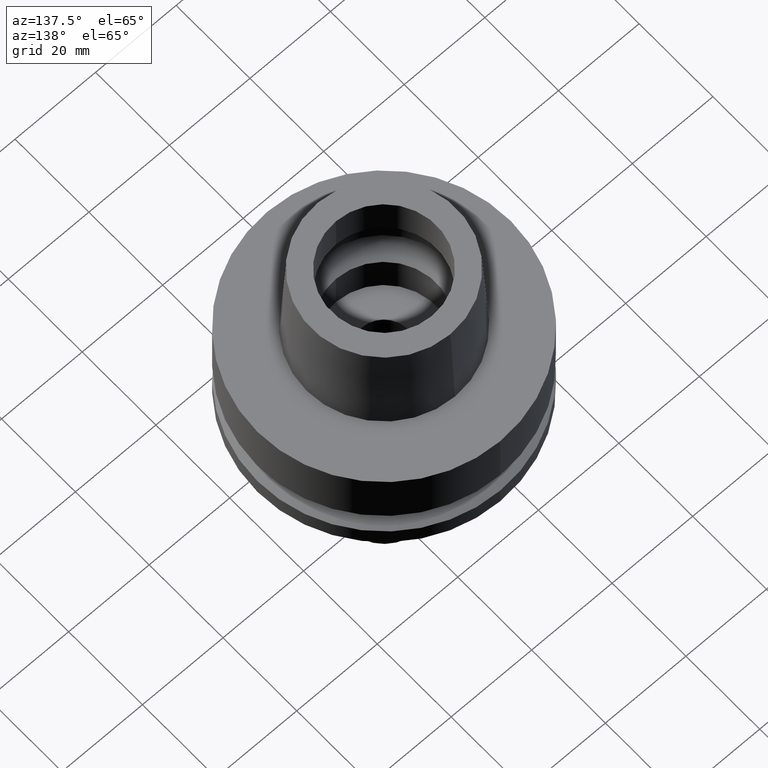
[diagram: clean part render]
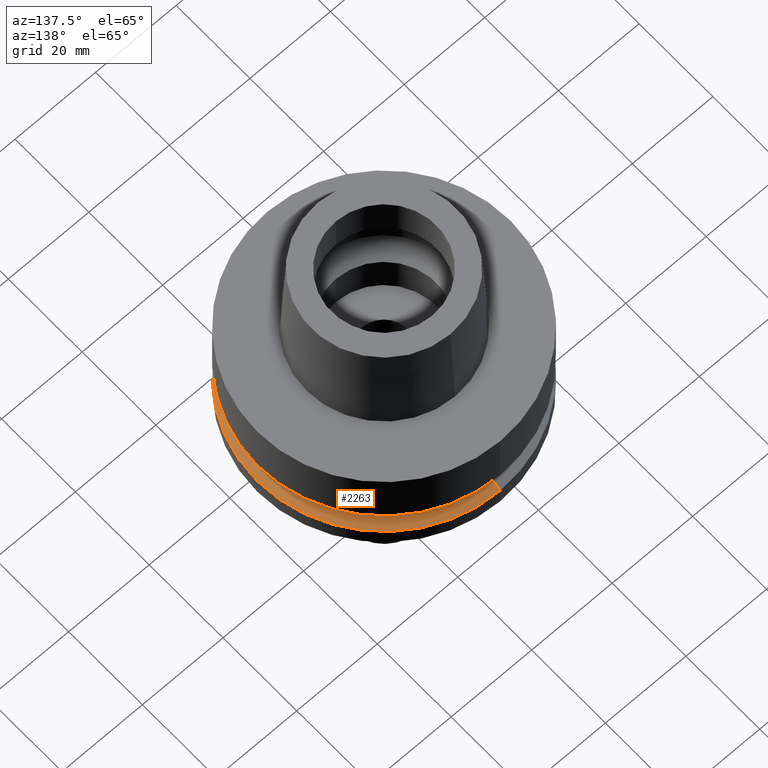
[diagram: same view with one face highlighted and labeled with its STEP entity id]
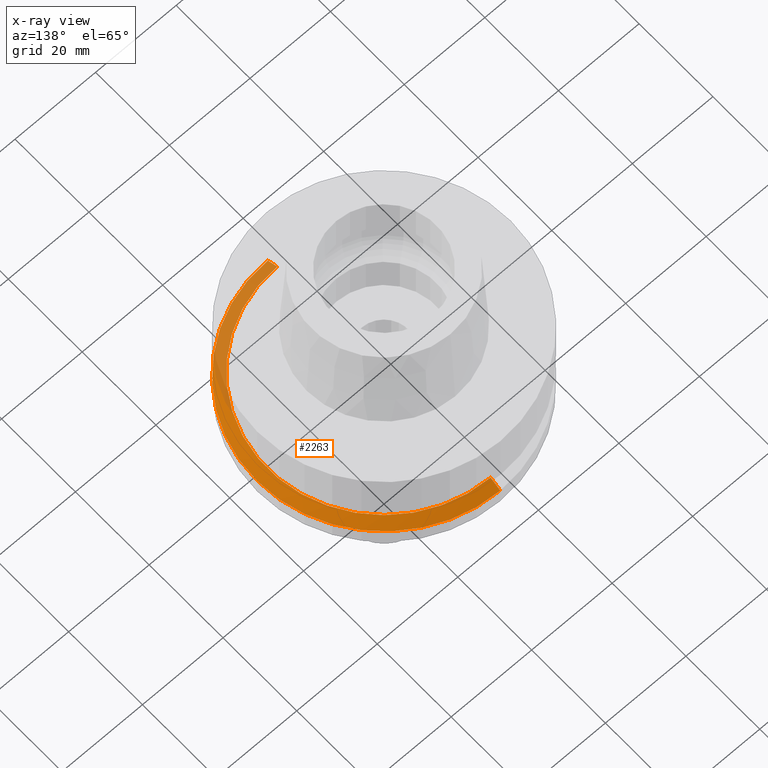
[diagram: x-ray of the same camera — body ghosted, the highlighted face saturated]
A machine part, auxiliary view. The second image highlights one B-rep face of the part: STEP entity #2263.
The next image is the same camera in x-ray: the body ghosted, the highlighted face saturated — about 24% of this face is hidden behind the body in this view.
In plain terms, the highlighted conical surface has half-angle 60 deg.
Its self-contained STEP definition (entity closure, byte-faithful):
#31 = DIRECTION ( 'NONE',  ( 0.0000000000000000000, 0.8660254037843856390, -0.5000000000000918154 ) ) ;
#72 = CARTESIAN_POINT ( 'NONE',  ( 0.0000000000000000000, 28.89759526419000224, -19.87500000000000000 ) ) ;
#136 = EDGE_CURVE ( 'NONE', #138, #1783, #640, .T. ) ;
#138 = VERTEX_POINT ( 'NONE', #72 ) ;
#139 = CARTESIAN_POINT ( 'NONE',  ( 0.0000000000000000000, -28.89759526419000224, -19.87500000000000000 ) ) ;
#202 = CARTESIAN_POINT ( 'NONE',  ( 0.0000000000000000000, 31.50000000000000000, -21.37749907476000288 ) ) ;
#219 = CIRCLE ( 'NONE', #1697, 31.50000000000000000 ) ;
#415 = ORIENTED_EDGE ( 'NONE', *, *, #1116, .T. ) ;
#493 = DIRECTION ( 'NONE',  ( 0.0000000000000000000, 1.000000000000000000, 0.0000000000000000000 ) ) ;
#573 = ORIENTED_EDGE ( 'NONE', *, *, #1100, .T. ) ;
#640 = LINE ( 'NONE', #1271, #1159 ) ;
#682 = AXIS2_PLACEMENT_3D ( 'NONE', #1639, #1029, #2265 ) ;
#690 = AXIS2_PLACEMENT_3D ( 'NONE', #2032, #781, #1552 ) ;
#738 = ORIENTED_EDGE ( 'NONE', *, *, #1958, .F. ) ;
#781 = DIRECTION ( 'NONE',  ( 0.0000000000000000000, 0.0000000000000000000, -1.000000000000000000 ) ) ;
#973 = LINE ( 'NONE', #1439, #1649 ) ;
#1029 = DIRECTION ( 'NONE',  ( 0.0000000000000000000, 0.0000000000000000000, -1.000000000000000000 ) ) ;
#1100 = EDGE_CURVE ( 'NONE', #138, #2324, #1956, .T. ) ;
#1116 = EDGE_CURVE ( 'NONE', #2324, #2196, #973, .T. ) ;
#1159 = VECTOR ( 'NONE', #31, 1000.000000000000000 ) ;
#1200 = FACE_OUTER_BOUND ( 'NONE', #2240, .T. ) ;
#1271 = CARTESIAN_POINT ( 'NONE',  ( 0.0000000000000000000, 28.89759526419000224, -19.87500000000000000 ) ) ;
#1439 = CARTESIAN_POINT ( 'NONE',  ( 0.0000000000000000000, -28.89759526419000224, -19.87500000000000000 ) ) ;
#1527 = DIRECTION ( 'NONE',  ( 0.0000000000000000000, 0.0000000000000000000, -1.000000000000000000 ) ) ;
#1552 = DIRECTION ( 'NONE',  ( 0.0000000000000000000, -1.000000000000000000, 0.0000000000000000000 ) ) ;
#1616 = CONICAL_SURFACE ( 'NONE', #690, 30.19879763209999979, 1.047197551196400456 ) ;
#1623 = ORIENTED_EDGE ( 'NONE', *, *, #136, .F. ) ;
#1639 = CARTESIAN_POINT ( 'NONE',  ( 0.0000000000000000000, 0.0000000000000000000, -19.87500000000000000 ) ) ;
#1649 = VECTOR ( 'NONE', #2692, 1000.000000000000000 ) ;
#1697 = AXIS2_PLACEMENT_3D ( 'NONE', #2585, #1527, #493 ) ;
#1783 = VERTEX_POINT ( 'NONE', #202 ) ;
#1956 = CIRCLE ( 'NONE', #682, 28.89759526419000224 ) ;
#1958 = EDGE_CURVE ( 'NONE', #1783, #2196, #219, .T. ) ;
#2032 = CARTESIAN_POINT ( 'NONE',  ( 0.0000000000000000000, 0.0000000000000000000, -20.62624953738000144 ) ) ;
#2196 = VERTEX_POINT ( 'NONE', #2249 ) ;
#2240 = EDGE_LOOP ( 'NONE', ( #573, #415, #738, #1623 ) ) ;
#2249 = CARTESIAN_POINT ( 'NONE',  ( 0.0000000000000000000, -31.50000000000000000, -21.37749907476000288 ) ) ;
#2263 = ADVANCED_FACE ( 'NONE', ( #1200 ), #1616, .T. ) ;
#2265 = DIRECTION ( 'NONE',  ( 0.0000000000000000000, 1.000000000000000000, 0.0000000000000000000 ) ) ;
#2324 = VERTEX_POINT ( 'NONE', #139 ) ;
#2585 = CARTESIAN_POINT ( 'NONE',  ( 0.0000000000000000000, 0.0000000000000000000, -21.37749907476000288 ) ) ;
#2692 = DIRECTION ( 'NONE',  ( 0.0000000000000000000, -0.8660254037843856390, -0.5000000000000918154 ) ) ;